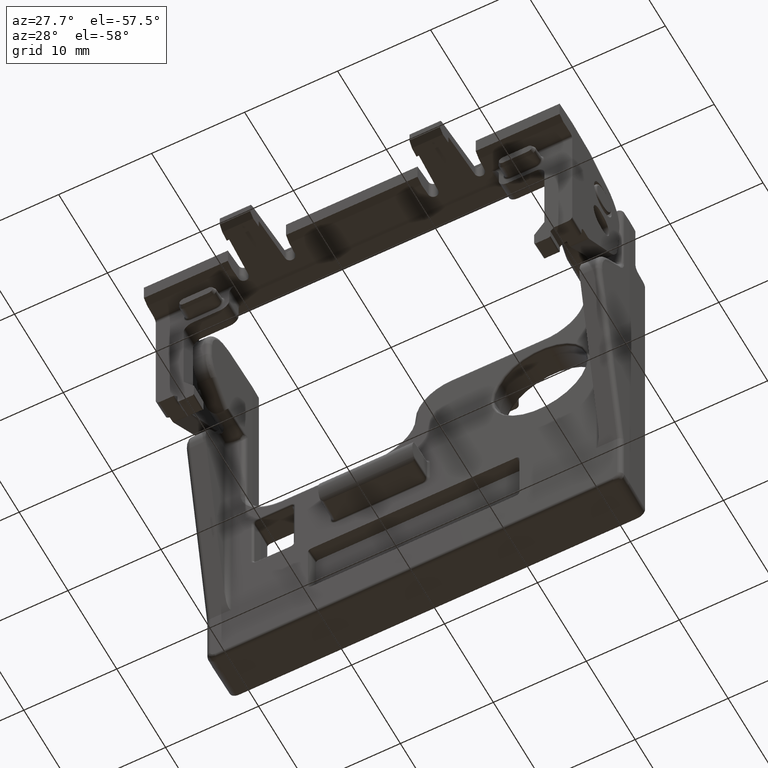
[diagram: clean part render]
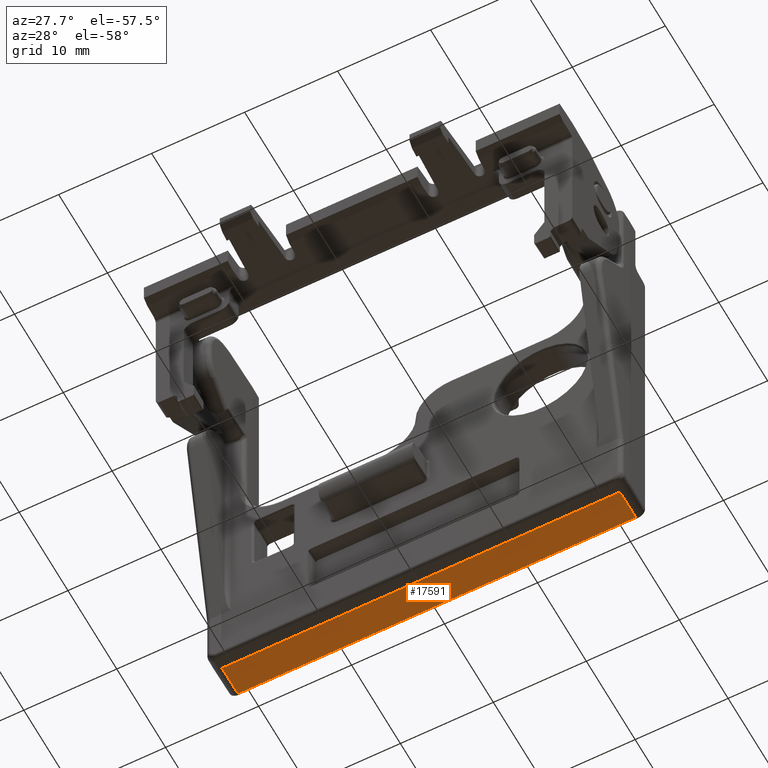
[diagram: same view with one face highlighted and labeled with its STEP entity id]
A machine part, auxiliary view. The second image highlights one B-rep face of the part: STEP entity #17591.
In plain terms, the highlighted planar face has unit normal (0, 0.0175, -0.9998).
Its self-contained STEP definition (entity closure, byte-faithful):
#8732=DIRECTION('',(0.E0,9.998476951564E-1,1.745240643728E-2));
#8733=VECTOR('',#8732,3.286863706872E0);
#8734=CARTESIAN_POINT('',(-2.14E1,1.5E0,-1.726E1));
#8735=LINE('',#8734,#8733);
#8773=DIRECTION('',(-1.E0,0.E0,0.E0));
#8774=VECTOR('',#8773,4.280000000001E1);
#8775=CARTESIAN_POINT('',(2.140000000001E1,4.786363101609E0,-1.720263631868E1));
#8776=LINE('',#8775,#8774);
#8782=DIRECTION('',(-1.E0,0.E0,0.E0));
#8783=VECTOR('',#8782,4.28E1);
#8784=CARTESIAN_POINT('',(2.14E1,1.5E0,-1.726E1));
#8785=LINE('',#8784,#8783);
#8786=DIRECTION('',(4.337581738853E-12,9.998476951564E-1,1.745240643728E-2));
#8787=VECTOR('',#8786,3.286863706872E0);
#8788=CARTESIAN_POINT('',(2.14E1,1.5E0,-1.726E1));
#8789=LINE('',#8788,#8787);
#10986=CARTESIAN_POINT('',(2.14E1,1.5E0,-1.726E1));
#10988=VERTEX_POINT('',#10986);
#10989=CARTESIAN_POINT('',(-2.14E1,1.5E0,-1.726E1));
#10990=VERTEX_POINT('',#10989);
#11869=CARTESIAN_POINT('',(2.14E1,4.786363196529E0,-1.720263631703E1));
#11871=VERTEX_POINT('',#11869);
#11874=CARTESIAN_POINT('',(-2.14E1,4.786363101609E0,-1.720263631868E1));
#11875=VERTEX_POINT('',#11874);
#17580=CARTESIAN_POINT('',(2.14E1,1.5E0,-1.726E1));
#17581=DIRECTION('',(0.E0,1.745240643728E-2,-9.998476951564E-1));
#17582=DIRECTION('',(-1.E0,0.E0,0.E0));
#17583=AXIS2_PLACEMENT_3D('',#17580,#17581,#17582);
#17584=PLANE('',#17583);
#17585=ORIENTED_EDGE('',*,*,#17574,.T.);
#17586=ORIENTED_EDGE('',*,*,#17493,.F.);
#17587=ORIENTED_EDGE('',*,*,#17519,.F.);
#17588=ORIENTED_EDGE('',*,*,#17545,.T.);
#17589=EDGE_LOOP('',(#17585,#17586,#17587,#17588));
#17590=FACE_OUTER_BOUND('',#17589,.F.);
#17591=ADVANCED_FACE('',(#17590),#17584,.T.);
#17493=EDGE_CURVE('',#10990,#11875,#8735,.T.);
#17519=EDGE_CURVE('',#10988,#10990,#8785,.T.);
#17545=EDGE_CURVE('',#10988,#11871,#8789,.T.);
#17574=EDGE_CURVE('',#11871,#11875,#8776,.T.);